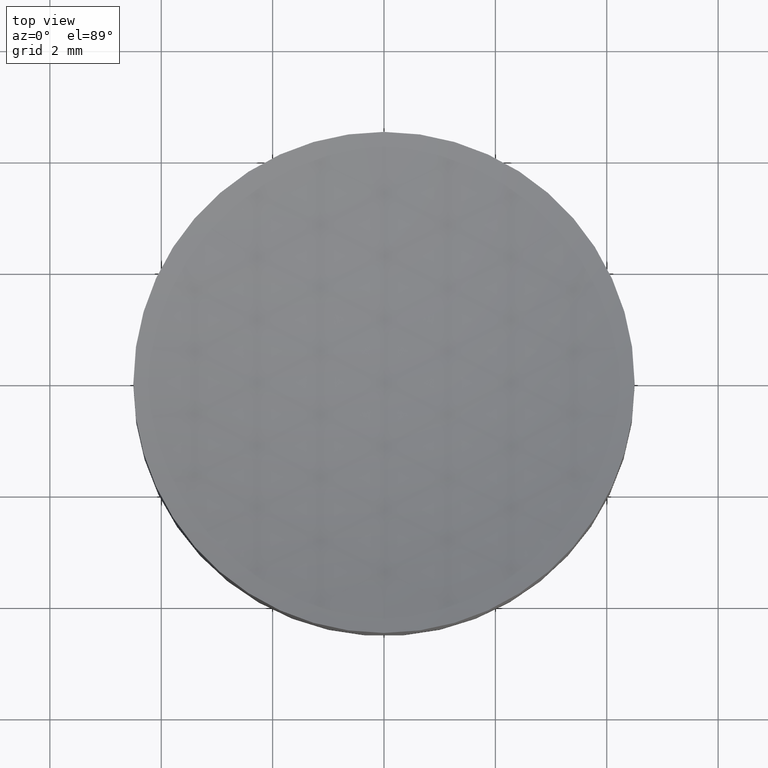
[diagram: clean part render]
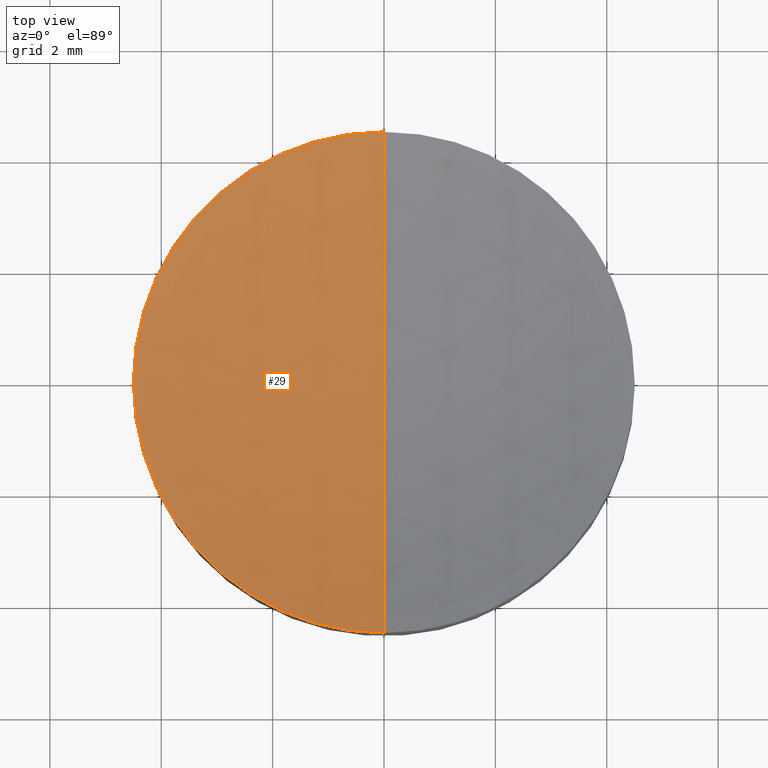
[diagram: same view with one face highlighted and labeled with its STEP entity id]
A machine part, top view. The second image highlights one B-rep face of the part: STEP entity #29.
In plain terms, the highlighted spherical surface has radius 14.01 mm.
Its self-contained STEP definition (entity closure, byte-faithful):
#1 = DIRECTION ( 'NONE',  ( -0.0000000000000000000, -0.0000000000000000000, 1.000000000000000000 ) ) ;
#2 = DIRECTION ( 'NONE',  ( 1.000000000000000000, 0.0000000000000000000, 0.0000000000000000000 ) ) ;
#12 = FACE_OUTER_BOUND ( 'NONE', #30, .T. ) ;
#13 = DIRECTION ( 'NONE',  ( -1.224606353822377300E-016, -1.000000000000000000, 0.0000000000000000000 ) ) ;
#14 = DIRECTION ( 'NONE',  ( -1.000000000000000000, 1.224606353822377300E-016, 0.0000000000000000000 ) ) ;
#15 = CARTESIAN_POINT ( 'NONE',  ( 0.0000000000000000000, 0.0000000000000000000, 0.6007874015748031500 ) ) ;
#16 = AXIS2_PLACEMENT_3D ( 'NONE', #15, #14, #13 ) ;
#25 = ORIENTED_EDGE ( 'NONE', *, *, #35, .T. ) ;
#26 = EDGE_CURVE ( 'NONE', #36, #32, #53, .T. ) ;
#29 = ADVANCED_FACE ( 'NONE', ( #12 ), #67, .F. ) ;
#30 = EDGE_LOOP ( 'NONE', ( #31, #25, #40, #41 ) ) ;
#31 = ORIENTED_EDGE ( 'NONE', *, *, #26, .F. ) ;
#32 = VERTEX_POINT ( 'NONE', #133 ) ;
#35 = EDGE_CURVE ( 'NONE', #36, #94, #162, .T. ) ;
#36 = VERTEX_POINT ( 'NONE', #145 ) ;
#40 = ORIENTED_EDGE ( 'NONE', *, *, #48, .T. ) ;
#41 = ORIENTED_EDGE ( 'NONE', *, *, #42, .T. ) ;
#42 = EDGE_CURVE ( 'NONE', #102, #32, #115, .T. ) ;
#48 = EDGE_CURVE ( 'NONE', #94, #102, #151, .T. ) ;
#53 = CIRCLE ( 'NONE', #16, 0.5515748031496062700 ) ;
#63 = DIRECTION ( 'NONE',  ( 0.0000000000000000000, 1.000000000000000000, 0.0000000000000000000 ) ) ;
#64 = DIRECTION ( 'NONE',  ( -1.000000000000000000, 0.0000000000000000000, 0.0000000000000000000 ) ) ;
#65 = CARTESIAN_POINT ( 'NONE',  ( 0.0000000000000000000, 0.0000000000000000000, 0.6007874015748031500 ) ) ;
#66 = AXIS2_PLACEMENT_3D ( 'NONE', #65, #64, #63 ) ;
#67 = SPHERICAL_SURFACE ( 'NONE', #66, 0.5515748031496062700 ) ;
#94 = VERTEX_POINT ( 'NONE', #251 ) ;
#102 = VERTEX_POINT ( 'NONE', #260 ) ;
#111 = DIRECTION ( 'NONE',  ( 1.000000000000000000, 0.0000000000000000000, 0.0000000000000000000 ) ) ;
#112 = DIRECTION ( 'NONE',  ( -0.0000000000000000000, -0.0000000000000000000, 1.000000000000000000 ) ) ;
#113 = CARTESIAN_POINT ( 'NONE',  ( 0.0000000000000000000, 0.0000000000000000000, 0.07843962404109772200 ) ) ;
#114 = AXIS2_PLACEMENT_3D ( 'NONE', #113, #112, #111 ) ;
#115 = CIRCLE ( 'NONE', #114, 0.1771653543307086800 ) ;
#124 = DIRECTION ( 'NONE',  ( 0.0000000000000000000, 0.0000000000000000000, -1.000000000000000000 ) ) ;
#125 = DIRECTION ( 'NONE',  ( 1.000000000000000000, 0.0000000000000000000, 0.0000000000000000000 ) ) ;
#133 = CARTESIAN_POINT ( 'NONE',  ( -2.169578185905786800E-017, -0.1771653543307086800, 0.07843962404109772200 ) ) ;
#145 = CARTESIAN_POINT ( 'NONE',  ( 0.0000000000000000000, 3.377310042726673900E-017, 0.04921259842519682500 ) ) ;
#149 = CARTESIAN_POINT ( 'NONE',  ( 0.0000000000000000000, 0.0000000000000000000, 0.07843962404109772200 ) ) ;
#150 = AXIS2_PLACEMENT_3D ( 'NONE', #149, #1, #2 ) ;
#151 = CIRCLE ( 'NONE', #150, 0.1771653543307086800 ) ;
#160 = CARTESIAN_POINT ( 'NONE',  ( 0.0000000000000000000, 0.0000000000000000000, 0.6007874015748031500 ) ) ;
#161 = AXIS2_PLACEMENT_3D ( 'NONE', #160, #125, #124 ) ;
#162 = CIRCLE ( 'NONE', #161, 0.5515748031496062700 ) ;
#251 = CARTESIAN_POINT ( 'NONE',  ( 0.0000000000000000000, 0.1771653543307086800, 0.07843962404109772200 ) ) ;
#260 = CARTESIAN_POINT ( 'NONE',  ( -0.1771653543307086800, 2.169578185905786800E-017, 0.07843962404109772200 ) ) ;